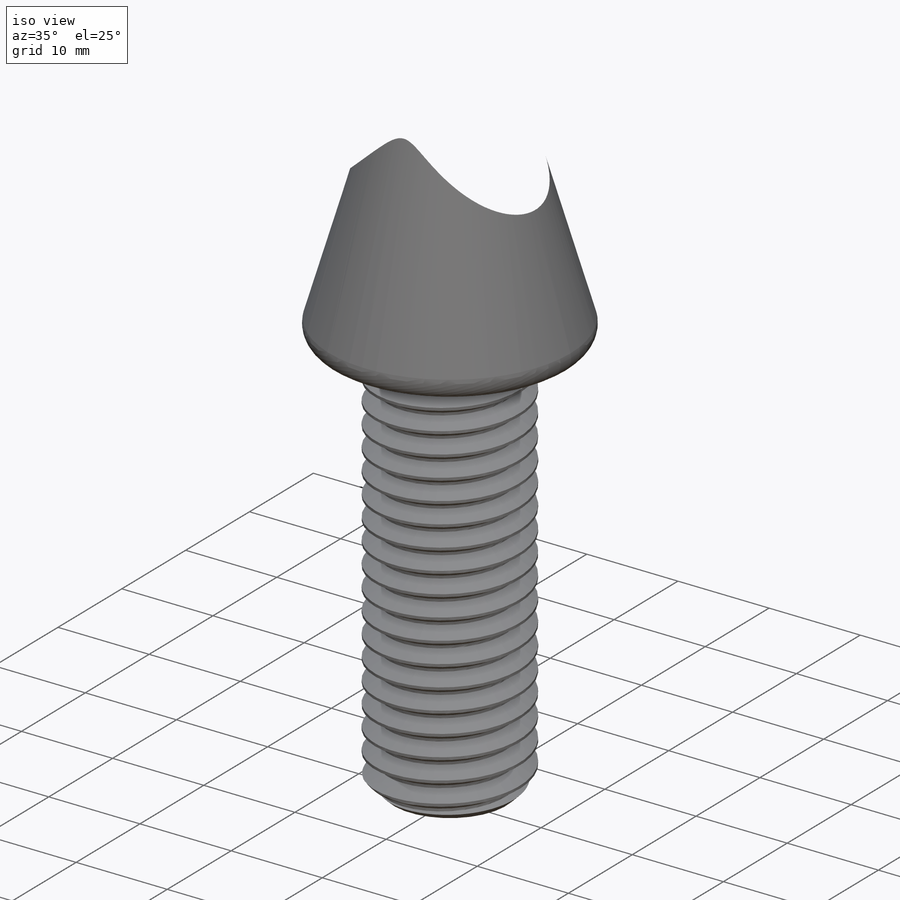
[diagram: iso view]
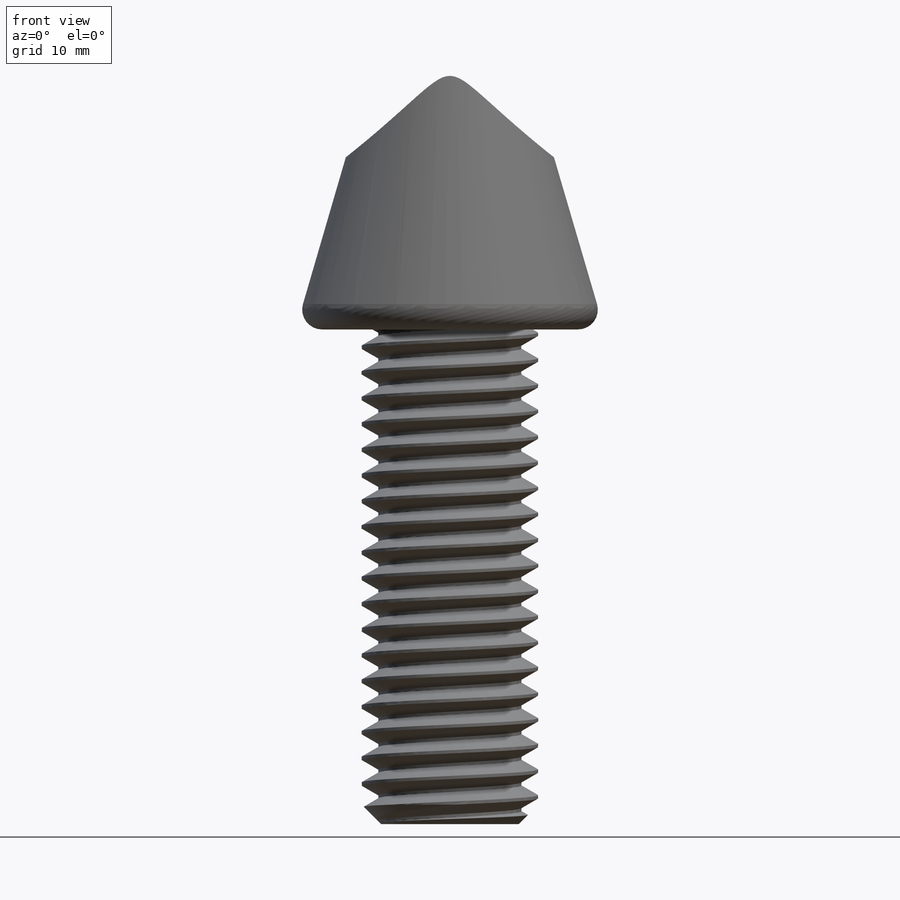
[diagram: front view]
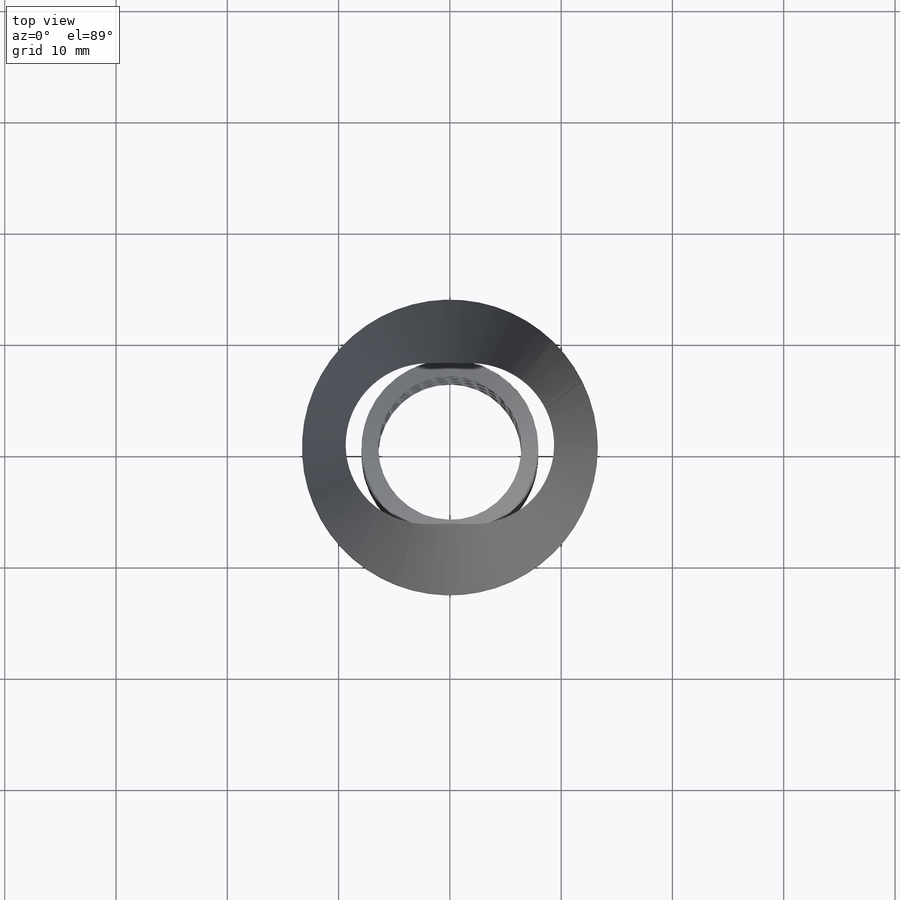
[diagram: top view]
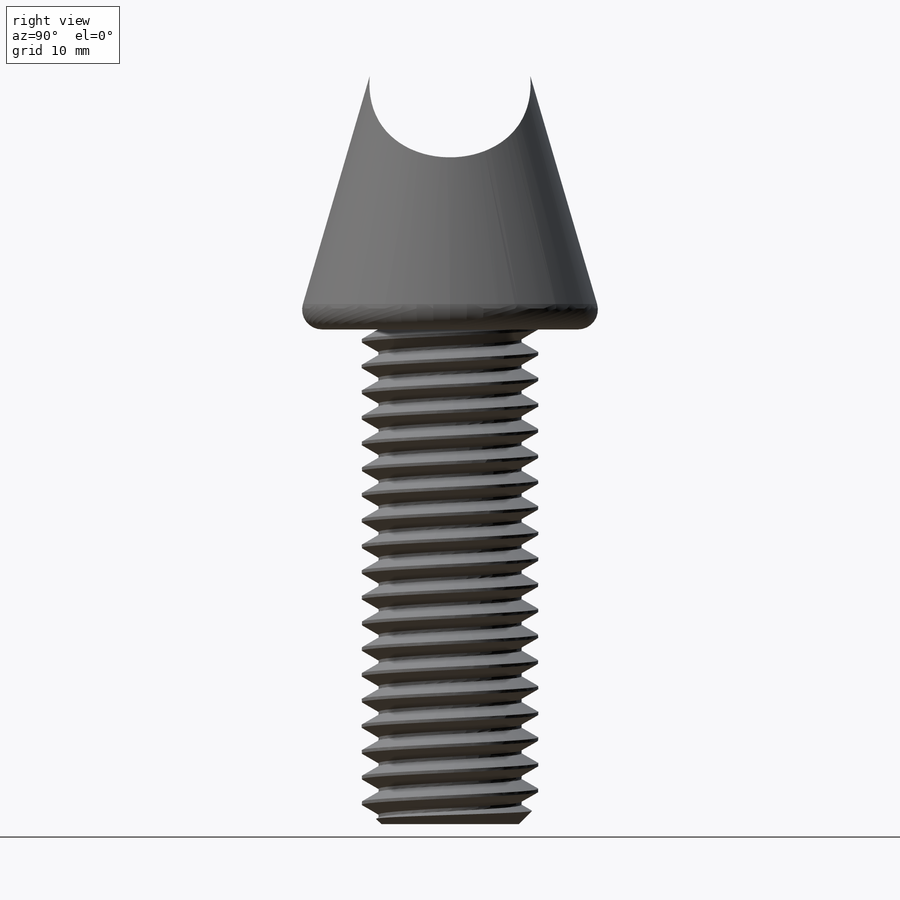
[diagram: right view]
SOLIDWORKS PART (.sldprt)
format: sldprt  version: not decoded by parser v0  size: 954,880 bytes
history: native  units: mm
features: sketch x9, extrude x2, revolve x2, material x1, helix x1, sweep x1, cut_extrude x1, fillet x1 (+15 scaffold rows collapsed)
feature tree (33):
  scaffold x15  (default folders/planes/origin — collapsed)
  material  "Material <not specified>"
  sketch  "Sketch1"  dims[c1.D=~56.437722mm c1.A=14.2875mm c1.Eye Dia.=34.925mm c1.L=~112.067972mm c1.H=~55.63025mm c2.L=~116.62918mm c2.D=~60.998931mm c2.Overall Lg.=123.825mm c2.Shank Lg.=101.6mm c2.OD=63.5mm c2.Thread Lg.=44.45mm c2.Thread OD=15.875mm c2.Nut Ht.=~5.55625mm c2.Nut Wd.=11.1125mm c2.Nut Offset=7.9375mm c2.D1=7.9375mm c2.D2=13.9065mm c2.D3=13.9065mm c3.D2=13.9065mm c3.D3=13.9065mm c3.Nut Offset=19.05mm c4.Nut Offset=12.7mm c4.Shoulder Dia.=~26.590625mm c4.D1=101.6mm c4.Shank Lg.=44.45mm c4.Thickness=15.875mm]
  sketch  "Sketch2"
  extrude  "Boss-Extrude1"  [1 undecoded]
  sketch  "Sketch3"  dims[D1=0.0mm]
  helix  "Helix/Spiral1"  Pitch=46.759091mm
  sketch  "Sketch4"  dims[D1=~2.309091mm D2=~0.288636mm]
  sweep  "Cut-Sweep1"
  sketch  "Sketch5"
  cut_extrude  "Cut-Extrude1"  [1 undecoded]
  sketch  "Sketch6"
  revolve  "Revolve1"  Angle=360deg
  sketch  "Sketch7"  dims[D1=0.0mm]
  extrude  "Boss-Extrude2"  [1 undecoded]
  sketch  "Sketch8"  dims[D1=~3.96875mm]
  revolve  "Revolve2"  Angle=360deg
  fillet  "Fillet1"  Radius=1.785938mm
  sketch  "SketchX"  dims[D1=~16.740909mm]
decode coverage: 10 of 17 modeling features carry decoded parameters
note: ~ marks probable driven/reference dimensions
note: 3 parameter values undecoded
summary: no parameter record found for 3 features
note: suppression state not decoded; provenance and decode notes live in map.json
